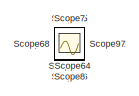
[diagram: root canvas - part 1/3, top left region]
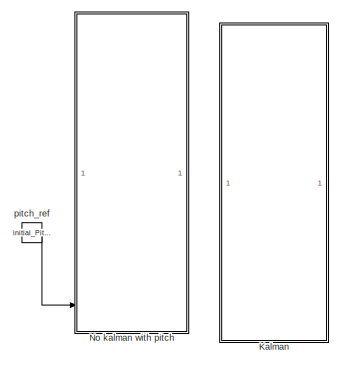
[diagram: root canvas - part 2/3, middle left region]
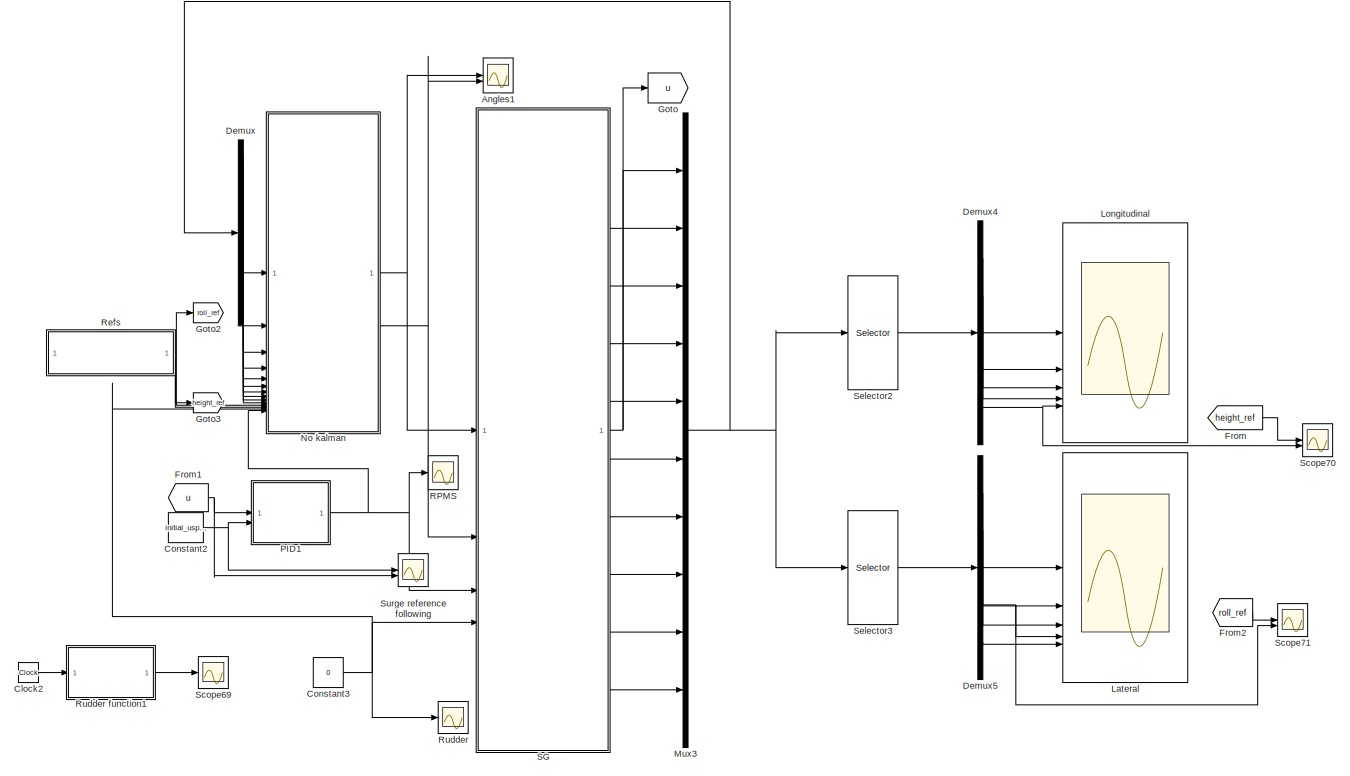
[diagram: root canvas - part 3/3, full width, bottom band]
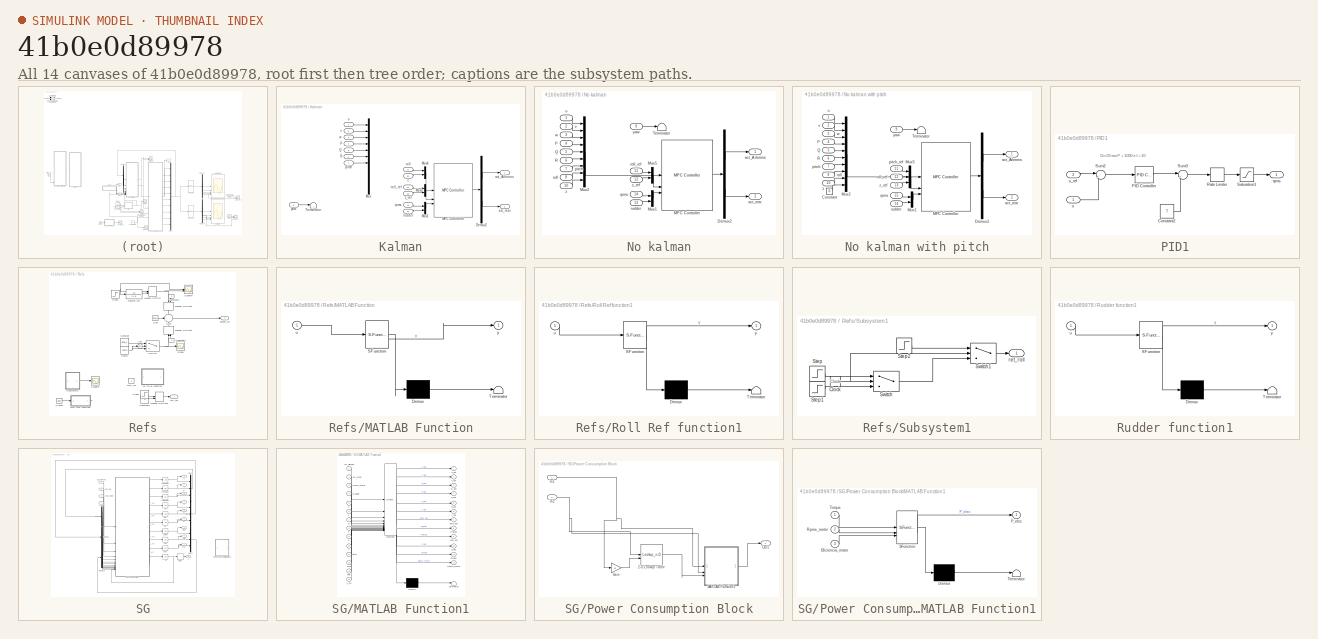
[diagram: thumbnail index - all 14 canvases of the model, root first then tree order]
MODEL slx_41b0e0d89978
KIND model
CONFIG AbsTol = auto
CONFIG EnableMultiTasking = off
CONFIG FixedStep = auto
CONFIG MaxStep = auto
CONFIG MinStep = auto
CONFIG RelTol = 1e-3
CONFIG SampleTimeConstraint = Unconstrained
CONFIG SolverName = VariableStepAuto
CONFIG StartTime = 0.0
CONFIG StopTime = 20
BLOCK [Scope] Angles1
  Floating = off
  NumInputPorts = 2
  ScopeSpecificationString = Simulink.scopes.TimeScopeBlockCfg('CurrentConfiguration', extmgr.ConfigurationSet(extmgr.Configuration('Core','General UI',true),extmgr.Configuration('Core','Source UI',true),extmgr.Configuration('Sources','WiredSimulink',true,'DataLoggingVariableName','ScopeData1'),extmgr.Configuration('Visuals','Time Domain',true,'SerializedDisplays',{struct('MinYLimReal','-1.89105','MaxYLimReal','16.87678','YLa...<+2280ch>
BLOCK [Clock] Clock2
  Commented = on
BLOCK [Constant] Constant2
  Value = initial_uspeed
BLOCK [Constant] Constant3
  Value = 0
BLOCK [Demux] Demux
  Outputs = 10
BLOCK [Demux] Demux4
  Outputs = 5
BLOCK [Demux] Demux5
  Outputs = 5
BLOCK [From] From
  GotoTag = height_ref
BLOCK [From] From1
  GotoTag = u
BLOCK [From] From2
  GotoTag = roll_ref
BLOCK [Goto] Goto
  GotoTag = u
BLOCK [Goto] Goto2
  GotoTag = roll_ref
BLOCK [Goto] Goto3
  GotoTag = height_ref
BLOCK [SubSystem] Kalman
  Commented = on
BLOCK [Demux] Kalman/Demux2
  Outputs = 2
BLOCK [Reference] Kalman/MPC Controller  REF=mpclib/MPC Controller  (lib defined in mdl_ae329e0e0455)
  SCDEnableBlockLinearizationSpecification = on
  SourceBlock = mpclib/MPC Controller
  SourceType = MPC
BLOCK [Mux] Kalman/Mux
  DisplayOption = bar
  Inputs = 11
BLOCK [Mux] Kalman/Mux1
  DisplayOption = bar
  Inputs = 2
BLOCK [Mux] Kalman/Mux3
  DisplayOption = bar
  Inputs = 2
BLOCK [Mux] Kalman/Mux4
  DisplayOption = bar
  Inputs = 2
BLOCK [Inport] Kalman/P
  NameLocation = left
  Port = 4
BLOCK [Inport] Kalman/Q
  NameLocation = left
  Port = 5
BLOCK [Inport] Kalman/R
  NameLocation = left
  Port = 6
BLOCK [Terminator] Kalman/Terminator
BLOCK [Outport] Kalman/act_Ailerons
BLOCK [Outport] Kalman/act_rear
  Port = 2
BLOCK [Inport] Kalman/pitch
  NameLocation = left
  Port = 7
BLOCK [Inport] Kalman/roll
  NameLocation = left
  Port = 8
BLOCK [Inport] Kalman/roll_ref
  NameLocation = left
  Port = 11
BLOCK [Inport] Kalman/rpms
  NameLocation = left
  Port = 13
BLOCK [Inport] Kalman/rudder
  NameLocation = left
  Port = 14
BLOCK [Inport] Kalman/u
  NameLocation = left
BLOCK [Inport] Kalman/v
  NameLocation = left
  Port = 2
BLOCK [Inport] Kalman/w
  NameLocation = left
  Port = 3
BLOCK [Inport] Kalman/yaw
  NameLocation = left
  Port = 9
BLOCK [Inport] Kalman/z
  NameLocation = left
  Port = 10
BLOCK [Inport] Kalman/z_ref
  NameLocation = left
  Port = 12
BLOCK [Scope] Lateral
  Floating = off
  NumInputPorts = 5
  ScopeSpecificationString = Simulink.scopes.TimeScopeBlockCfg('CurrentConfiguration', extmgr.ConfigurationSet(extmgr.Configuration('Core','General UI',true),extmgr.Configuration('Core','Source UI',true),extmgr.Configuration('Sources','WiredSimulink',true,'DataLoggingVariableName','ScopeData2'),extmgr.Configuration('Visuals','Time Domain',true,'SerializedDisplays',{struct('MinYLimReal','-1.01808','MaxYLimReal','9.1627','YLabe...<+4793ch>
BLOCK [Scope] Longitudinal
  Floating = off
  NameLocation = top
  NumInputPorts = 5
  ScopeSpecificationString = Simulink.scopes.TimeScopeBlockCfg('CurrentConfiguration', extmgr.ConfigurationSet(extmgr.Configuration('Core','General UI',true),extmgr.Configuration('Core','Source UI',true),extmgr.Configuration('Sources','WiredSimulink',true,'DataLoggingVariableName','ScopeData3'),extmgr.Configuration('Visuals','Time Domain',true,'SerializedDisplays',{struct('MinYLimReal','10.24852','MaxYLimReal','10.25595','YLa...<+4771ch>
BLOCK [Mux] Mux3
  DisplayOption = bar
  Inputs = 10
BLOCK [SubSystem] No kalman
BLOCK [SubSystem] No kalman with pitch
  Commented = on
BLOCK [Constant] No kalman with pitch/Constant
  Value = 0
BLOCK [Demux] No kalman with pitch/Demux2
  Outputs = 2
BLOCK [Reference] No kalman with pitch/MPC Controller  REF=mpclib/MPC Controller  (lib defined in mdl_ae329e0e0455)
  SCDEnableBlockLinearizationSpecification = on
  SourceBlock = mpclib/MPC Controller
  SourceType = MPC
BLOCK [Mux] No kalman with pitch/Mux1
  DisplayOption = bar
  Inputs = 2
BLOCK [Mux] No kalman with pitch/Mux2
  DisplayOption = bar
  Inputs = 10
BLOCK [Mux] No kalman with pitch/Mux5
  DisplayOption = bar
  Inputs = 3
BLOCK [Inport] No kalman with pitch/P
  NameLocation = left
  Port = 4
BLOCK [Inport] No kalman with pitch/Q
  NameLocation = left
  Port = 5
BLOCK [Inport] No kalman with pitch/R
  NameLocation = left
  Port = 6
BLOCK [Terminator] No kalman with pitch/Terminator
BLOCK [Outport] No kalman with pitch/act_Ailerons
BLOCK [Outport] No kalman with pitch/act_rear
  Port = 2
BLOCK [Inport] No kalman with pitch/pitch
  NameLocation = left
  Port = 7
BLOCK [Inport] No kalman with pitch/pitch_ref
  NameLocation = left
  Port = 11
BLOCK [Inport] No kalman with pitch/roll
  NameLocation = left
  Port = 8
BLOCK [Inport] No kalman with pitch/roll_ref
  NameLocation = left
  Port = 12
BLOCK [Inport] No kalman with pitch/rpms
  NameLocation = left
  Port = 15
BLOCK [Inport] No kalman with pitch/rudder
  NameLocation = left
  Port = 14
BLOCK [Inport] No kalman with pitch/u
  NameLocation = left
BLOCK [Inport] No kalman with pitch/v
  NameLocation = left
  Port = 2
BLOCK [Inport] No kalman with pitch/w
  NameLocation = left
  Port = 3
BLOCK [Inport] No kalman with pitch/yaw
  NameLocation = left
  Port = 9
BLOCK [Inport] No kalman with pitch/z
  NameLocation = left
  Port = 10
BLOCK [Inport] No kalman with pitch/z_ref
  NameLocation = left
  Port = 13
BLOCK [Demux] No kalman/Demux2
  Outputs = 2
BLOCK [Reference] No kalman/MPC Controller  REF=mpclib/MPC Controller  (lib defined in mdl_ae329e0e0455)
  SCDEnableBlockLinearizationSpecification = on
  SourceBlock = mpclib/MPC Controller
  SourceType = MPC
BLOCK [Mux] No kalman/Mux1
  DisplayOption = bar
  Inputs = 2
BLOCK [Mux] No kalman/Mux2
  DisplayOption = bar
  Inputs = 9
BLOCK [Mux] No kalman/Mux5
  DisplayOption = bar
  Inputs = 2
BLOCK [Inport] No kalman/P
  NameLocation = left
  Port = 4
BLOCK [Inport] No kalman/Q
  NameLocation = left
  Port = 5
BLOCK [Inport] No kalman/R
  NameLocation = left
  Port = 6
BLOCK [Terminator] No kalman/Terminator
BLOCK [Outport] No kalman/act_Ailerons
BLOCK [Outport] No kalman/act_rear
  Port = 2
BLOCK [Inport] No kalman/pitch
  NameLocation = left
  Port = 7
BLOCK [Inport] No kalman/roll
  NameLocation = left
  Port = 8
BLOCK [Inport] No kalman/roll_ref
  NameLocation = left
  Port = 11
BLOCK [Inport] No kalman/rpms
  NameLocation = left
  Port = 14
BLOCK [Inport] No kalman/rudder
  NameLocation = left
  Port = 13
BLOCK [Inport] No kalman/u
  NameLocation = left
BLOCK [Inport] No kalman/v
  NameLocation = left
  Port = 2
BLOCK [Inport] No kalman/w
  NameLocation = left
  Port = 3
BLOCK [Inport] No kalman/yaw
  NameLocation = left
  Port = 9
BLOCK [Inport] No kalman/z
  NameLocation = left
  Port = 10
BLOCK [Inport] No kalman/z_ref
  NameLocation = left
  Port = 12
BLOCK [SubSystem] PID1
BLOCK [Constant] PID1/Constant2
  Value = T
BLOCK [Reference] PID1/PID Controller  REF=slpidlib/PID Controller
  SourceBlock = slpidlib/PID Controller
  SourceType = PID 1dof
BLOCK [RateLimiter] PID1/Rate Limiter
  FallingSlewLimit = -1000
  InitialCondition = T
  RisingSlewLimit = 1000
  SampleTimeMode = inherited
BLOCK [Saturate] PID1/Saturation1
  UpperLimit = 10000
BLOCK [Sum] PID1/Sum2
  Inputs = |+-
BLOCK [Sum] PID1/Sum3
  Inputs = |++
BLOCK [Outport] PID1/rpms
BLOCK [Inport] PID1/u
  NameLocation = top
BLOCK [Inport] PID1/u_ref
  Port = 2
BLOCK [Scope] RPMS
  Floating = off
  NumInputPorts = 1
  ScopeSpecificationString = Simulink.scopes.TimeScopeBlockCfg('CurrentConfiguration', extmgr.ConfigurationSet(extmgr.Configuration('Core','General UI',true),extmgr.Configuration('Core','Source UI',true),extmgr.Configuration('Sources','WiredSimulink',true,'DataLoggingVariableName','ScopeData1'),extmgr.Configuration('Visuals','Time Domain',true,'SerializedDisplays',{struct('MinYLimReal','4636.22712','MaxYLimReal','4788.20962',...<+1526ch>
BLOCK [SubSystem] Refs
  NameLocation = top
BLOCK [Abs] Refs/Abs
  SaturateOnIntegerOverflow = off
BLOCK [Clock] Refs/Clock3
  Commented = on
BLOCK [Constant] Refs/Constant
  NameLocation = right
  Value = initial_Z
BLOCK [Constant] Refs/Constant1
  NameLocation = right
  Value = 0
BLOCK [Constant] Refs/Constant2
  NameLocation = left
  Value = 0
BLOCK [Constant] Refs/Constant3
  NameLocation = right
  Value = 0
BLOCK [SubSystem] Refs/MATLAB Function
  ErrorFcn = Stateflow.Translate.translate
  PermitHierarchicalResolution = ExplicitOnly
  SFBlockType = MATLAB Function
  TreatAsAtomicUnit = on
BLOCK [Demux] Refs/MATLAB Function/ Demux 
  Outputs = 1
BLOCK [S-Function] Refs/MATLAB Function/ SFunction 
  EnableBusSupport = on
  FunctionName = sf_sfun
  PortCounts = [1 2]
  SFcnIsStateOwnerBlock = off
  SFunctionDeploymentMode = off
  Tag = Stateflow S-Function 2
BLOCK [Terminator] Refs/MATLAB Function/ Terminator 
BLOCK [Inport] Refs/MATLAB Function/u
BLOCK [Outport] Refs/MATLAB Function/y
BLOCK [ManualSwitch] Refs/Manual Switch
  CurrentSetting = 0
BLOCK [ManualSwitch] Refs/Manual Switch1
  CurrentSetting = 0
  NameLocation = right
BLOCK [ManualSwitch] Refs/Manual Switch2
  NameLocation = left
BLOCK [ManualSwitch] Refs/Manual Switch3
  CurrentSetting = 0
BLOCK [Reference] Refs/Ramp  REF=simulink/Sources/Ramp
  SourceBlock = simulink/Sources/Ramp
  SourceType = Ramp
BLOCK [SubSystem] Refs/Roll Ref function1
  Commented = on
  ErrorFcn = Stateflow.Translate.translate
  PermitHierarchicalResolution = ExplicitOnly
  SFBlockType = MATLAB Function
  TreatAsAtomicUnit = on
BLOCK [Demux] Refs/Roll Ref function1/ Demux 
  Outputs = 1
BLOCK [S-Function] Refs/Roll Ref function1/ SFunction 
  EnableBusSupport = off
  FunctionName = sf_sfun
  PortCounts = [1 2]
  SFcnIsStateOwnerBlock = off
  SFunctionDeploymentMode = off
  Tag = Stateflow S-Function 6
BLOCK [Terminator] Refs/Roll Ref function1/ Terminator 
BLOCK [Inport] Refs/Roll Ref function1/u
BLOCK [Outport] Refs/Roll Ref function1/y
BLOCK [Constant] Refs/Roll_ref
  NameLocation = left
  Value = 2
BLOCK [Scope] Refs/Scope
  Floating = off
  NumInputPorts = 1
  ScopeSpecificationString = Simulink.scopes.TimeScopeBlockCfg('CurrentConfiguration', extmgr.ConfigurationSet(extmgr.Configuration('Core','General UI',true),extmgr.Configuration('Core','Source UI',true),extmgr.Configuration('Sources','WiredSimulink',true,'DataLoggingVariableName','ScopeData5'),extmgr.Configuration('Visuals','Time Domain',true,'SerializedDisplays',{struct('MinYLimReal','-56.25','MaxYLimReal','6.25','YLabelRea...<+1440ch>
BLOCK [Scope] Refs/Scope70
  Floating = off
  NumInputPorts = 2
  ScopeSpecificationString = Simulink.scopes.TimeScopeBlockCfg('CurrentConfiguration', extmgr.ConfigurationSet(extmgr.Configuration('Core','General UI',true),extmgr.Configuration('Core','Source UI',true),extmgr.Configuration('Sources','WiredSimulink',true,'DataLoggingVariableName','ScopeData1'),extmgr.Configuration('Visuals','Time Domain',true,'SerializedDisplays',{struct('MinYLimReal','-1.875','MaxYLimReal','16.875','YLabelR...<+1461ch>
BLOCK [Scope] Refs/Scope72
  Commented = on
  Floating = off
  NumInputPorts = 1
  ScopeSpecificationString = Simulink.scopes.TimeScopeBlockCfg('CurrentConfiguration', extmgr.ConfigurationSet(extmgr.Configuration('Core','General UI',true),extmgr.Configuration('Core','Source UI',true),extmgr.Configuration('Sources','WiredSimulink',true,'DataLoggingVariableName','ScopeData2'),extmgr.Configuration('Visuals','Time Domain',true,'SerializedDisplays',{struct('MinYLimReal','-13.75','MaxYLimReal','13.75','YLabelRe...<+1520ch>
BLOCK [Step] Refs/Step1
  After = 15
  SampleTime = 0
  Time = 5
BLOCK [Step] Refs/Step2
  After = 2
  SampleTime = 0
  Time = 5
BLOCK [SubSystem] Refs/Subsystem1
  Commented = on
BLOCK [Clock] Refs/Subsystem1/Clock
BLOCK [Step] Refs/Subsystem1/Step
  After = -11
  Before = 11
  SampleTime = 0
  Time = 4
BLOCK [Step] Refs/Subsystem1/Step1
  After = 11
  SampleTime = 0
BLOCK [Step] Refs/Subsystem1/Step2
  After = 0
  Before = -11
  SampleTime = 0
  Time = 7
BLOCK [Switch] Refs/Subsystem1/Switch
  Criteria = u2 > Threshold
  InputSameDT = off
  SaturateOnIntegerOverflow = off
  Threshold = 3
BLOCK [Switch] Refs/Subsystem1/Switch1
  Criteria = u2 > Threshold
  InputSameDT = off
  SaturateOnIntegerOverflow = off
  Threshold = 7
BLOCK [Outport] Refs/Subsystem1/ref_roll
BLOCK [Sum] Refs/Sum
  Inputs = +|+|+
BLOCK [Switch] Refs/Switch
  Criteria = u2 > Threshold
  InputSameDT = off
  SaturateOnIntegerOverflow = off
  Threshold = 50
BLOCK [TransferFcn] Refs/Transfer Fcn
  Denominator = [1 1]
BLOCK [Outport] Refs/height_ref
  Port = 2
BLOCK [Outport] Refs/roll_ref
  NameLocation = top
BLOCK [Constant] Refs/z_ref
  NameLocation = left
  Value = initial_Z
BLOCK [Scope] Rudder
  Floating = off
  NumInputPorts = 1
  ScopeSpecificationString = Simulink.scopes.TimeScopeBlockCfg('CurrentConfiguration', extmgr.ConfigurationSet(extmgr.Configuration('Core','General UI',true),extmgr.Configuration('Core','Source UI',true),extmgr.Configuration('Sources','WiredSimulink',true,'DataLoggingVariableName','ScopeData6'),extmgr.Configuration('Visuals','Time Domain',true,'SerializedDisplays',{struct('MinYLimReal','-1.00000','MaxYLimReal','1.00000','YLab...<+1588ch>
BLOCK [SubSystem] Rudder function1
  Commented = on
  ErrorFcn = Stateflow.Translate.translate
  PermitHierarchicalResolution = ExplicitOnly
  SFBlockType = MATLAB Function
  TreatAsAtomicUnit = on
BLOCK [Demux] Rudder function1/ Demux 
  Outputs = 1
BLOCK [S-Function] Rudder function1/ SFunction 
  EnableBusSupport = off
  FunctionName = sf_sfun
  PortCounts = [1 2]
  SFcnIsStateOwnerBlock = off
  SFunctionDeploymentMode = off
  Tag = Stateflow S-Function 7
BLOCK [Terminator] Rudder function1/ Terminator 
BLOCK [Inport] Rudder function1/u
BLOCK [Outport] Rudder function1/y
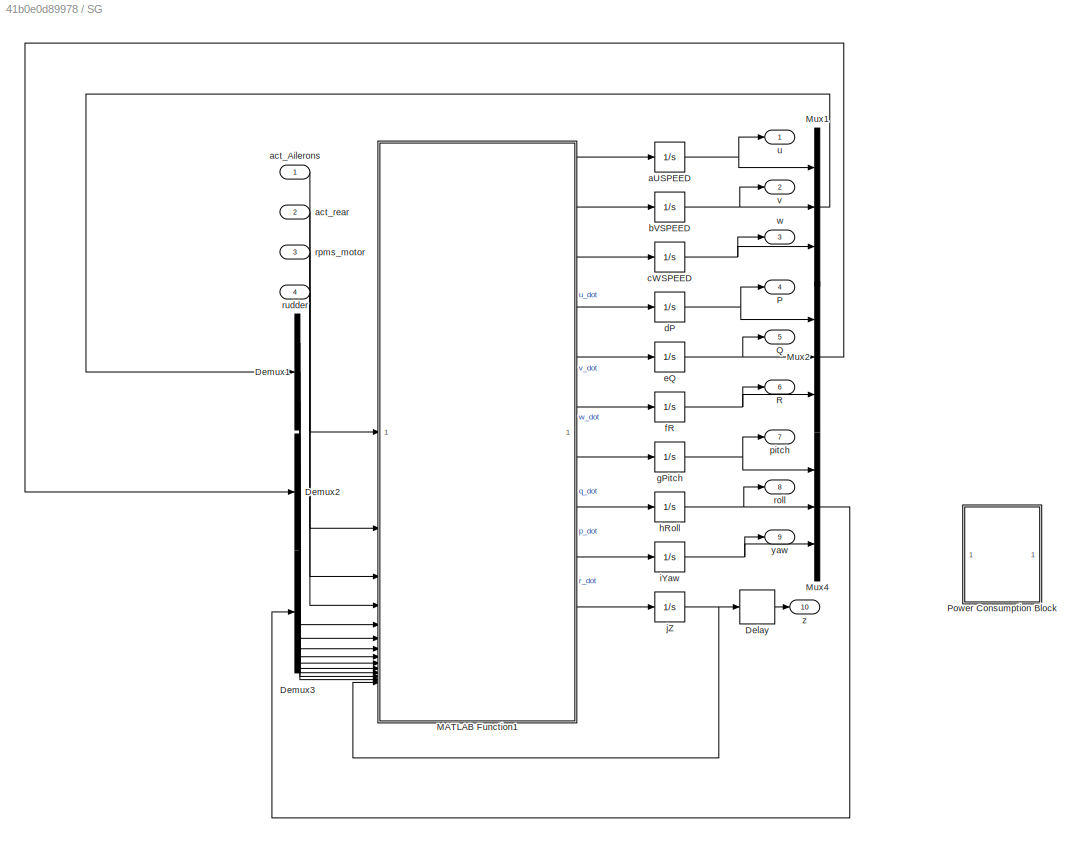
BLOCK [SubSystem] SG
BLOCK [Delay] SG/Delay
  DelayLength = n
  InitialCondition = initial_Z
  InputPortMap = u0
  SampleTime = ts
BLOCK [Demux] SG/Demux1
  Outputs = 3
BLOCK [Demux] SG/Demux2
  Outputs = 3
BLOCK [Demux] SG/Demux3
  Outputs = 3
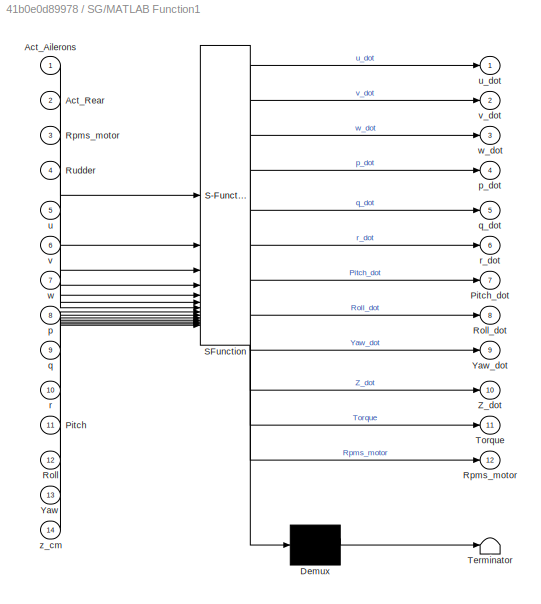
BLOCK [SubSystem] SG/MATLAB Function1
  ErrorFcn = Stateflow.Translate.translate
  PermitHierarchicalResolution = ExplicitOnly
  SFBlockType = MATLAB Function
  TreatAsAtomicUnit = on
BLOCK [Demux] SG/MATLAB Function1/ Demux 
  Outputs = 1
BLOCK [S-Function] SG/MATLAB Function1/ SFunction 
  EnableBusSupport = on
  FunctionName = sf_sfun
  PortCounts = [14 13]
  SFcnIsStateOwnerBlock = off
  SFunctionDeploymentMode = off
  Tag = Stateflow S-Function 1
BLOCK [Terminator] SG/MATLAB Function1/ Terminator 
BLOCK [Inport] SG/MATLAB Function1/Act_Ailerons
BLOCK [Inport] SG/MATLAB Function1/Act_Rear
  Port = 2
BLOCK [Inport] SG/MATLAB Function1/Pitch
  Port = 11
BLOCK [Outport] SG/MATLAB Function1/Pitch_dot
  Port = 7
BLOCK [Inport] SG/MATLAB Function1/Roll
  Port = 12
BLOCK [Outport] SG/MATLAB Function1/Roll_dot
  Port = 8
BLOCK [Outport] SG/MATLAB Function1/Rpms_motor
  Port = 12
BLOCK [Inport] SG/MATLAB Function1/Rpms_motor 
  Port = 3
BLOCK [Inport] SG/MATLAB Function1/Rudder
  Port = 4
BLOCK [Outport] SG/MATLAB Function1/Torque
  Port = 11
BLOCK [Inport] SG/MATLAB Function1/Yaw
  Port = 13
BLOCK [Outport] SG/MATLAB Function1/Yaw_dot
  Port = 9
BLOCK [Outport] SG/MATLAB Function1/Z_dot
  Port = 10
BLOCK [Inport] SG/MATLAB Function1/p
  Port = 8
BLOCK [Outport] SG/MATLAB Function1/p_dot
  Port = 4
BLOCK [Inport] SG/MATLAB Function1/q
  Port = 9
BLOCK [Outport] SG/MATLAB Function1/q_dot
  Port = 5
BLOCK [Inport] SG/MATLAB Function1/r
  Port = 10
BLOCK [Outport] SG/MATLAB Function1/r_dot
  Port = 6
BLOCK [Inport] SG/MATLAB Function1/u
  Port = 5
BLOCK [Outport] SG/MATLAB Function1/u_dot
BLOCK [Inport] SG/MATLAB Function1/v
  Port = 6
BLOCK [Outport] SG/MATLAB Function1/v_dot
  Port = 2
BLOCK [Inport] SG/MATLAB Function1/w
  Port = 7
BLOCK [Outport] SG/MATLAB Function1/w_dot
  Port = 3
BLOCK [Inport] SG/MATLAB Function1/z_cm
  Port = 14
BLOCK [Mux] SG/Mux1
  DisplayOption = bar
  Inputs = 3
BLOCK [Mux] SG/Mux2
  DisplayOption = bar
  Inputs = 3
BLOCK [Mux] SG/Mux4
  DisplayOption = bar
  Inputs = 3
BLOCK [Outport] SG/P
  NameLocation = top
  Port = 4
BLOCK [SubSystem] SG/Power Consumption Block
  Commented = on
BLOCK [Lookup_n-D] SG/Power Consumption Block/2-D Lookup Table
  BreakpointsForDimension1 = [1:6000]
  BreakpointsForDimension2 = [1:140]
  InputPortMap = u0,u1
  InternalRulePriority = Speed
  RndMeth = Simplest
  Table = Eff
BLOCK [Gain] SG/Power Consumption Block/Gain
  Gain = 10
BLOCK [Inport] SG/Power Consumption Block/In1
BLOCK [Inport] SG/Power Consumption Block/In2
  Port = 2
BLOCK [SubSystem] SG/Power Consumption Block/MATLAB Function1
  ErrorFcn = Stateflow.Translate.translate
  PermitHierarchicalResolution = ExplicitOnly
  SFBlockType = MATLAB Function
  TreatAsAtomicUnit = on
BLOCK [Demux] SG/Power Consumption Block/MATLAB Function1/ Demux 
  Outputs = 1
BLOCK [S-Function] SG/Power Consumption Block/MATLAB Function1/ SFunction 
  EnableBusSupport = off
  FunctionName = sf_sfun
  PortCounts = [3 2]
  SFcnIsStateOwnerBlock = off
  SFunctionDeploymentMode = off
  Tag = Stateflow S-Function 8
BLOCK [Terminator] SG/Power Consumption Block/MATLAB Function1/ Terminator 
BLOCK [Inport] SG/Power Consumption Block/MATLAB Function1/Eficiencia_motor
  Port = 3
BLOCK [Outport] SG/Power Consumption Block/MATLAB Function1/P_elec
BLOCK [Inport] SG/Power Consumption Block/MATLAB Function1/Rpms_motor
  Port = 2
BLOCK [Inport] SG/Power Consumption Block/MATLAB Function1/Torque
BLOCK [Outport] SG/Power Consumption Block/Out1
BLOCK [Outport] SG/Q
  NameLocation = top
  Port = 5
BLOCK [Outport] SG/R
  NameLocation = top
  Port = 6
BLOCK [Integrator] SG/aUSPEED
  InitialCondition = initial_uspeed
BLOCK [Inport] SG/act_Ailerons
BLOCK [Inport] SG/act_rear
  Port = 2
BLOCK [Integrator] SG/bVSPEED
  InitialCondition = initial_vspeed
BLOCK [Integrator] SG/cWSPEED
  InitialCondition = initial_wspeed
BLOCK [Integrator] SG/dP
  InitialCondition = initial_P
BLOCK [Integrator] SG/eQ
  InitialCondition = initial_Q
BLOCK [Integrator] SG/fR
  InitialCondition = initial_R
BLOCK [Integrator] SG/gPitch
  InitialCondition = initial_Pitch
BLOCK [Integrator] SG/hRoll
  InitialCondition = initial_ROLL
BLOCK [Integrator] SG/iYaw
  InitialCondition = initial_YAW
BLOCK [Integrator] SG/jZ
  InitialCondition = initial_Z
BLOCK [Outport] SG/pitch
  NameLocation = top
  Port = 7
BLOCK [Outport] SG/roll
  NameLocation = top
  Port = 8
BLOCK [Inport] SG/rpms_motor
  Port = 3
BLOCK [Inport] SG/rudder
  Port = 4
BLOCK [Outport] SG/u
  NameLocation = top
BLOCK [Outport] SG/v
  NameLocation = top
  Port = 2
BLOCK [Outport] SG/w
  NameLocation = top
  Port = 3
BLOCK [Outport] SG/yaw
  NameLocation = top
  Port = 9
BLOCK [Outport] SG/z
  NameLocation = top
  Port = 10
BLOCK [Scope] Scope
  Floating = off
  IOType = viewer
  NumInputPorts = 1
  ScopeSpecificationString = Simulink.scopes.TimeScopeBlockCfg('CurrentConfiguration', extmgr.ConfigurationSet(extmgr.Configuration('Core','General UI',true),extmgr.Configuration('Core','Source UI',true),extmgr.Configuration('Sources','WiredSimulink',true,'DataLoggingVariableName','ScopeData1'),extmgr.Configuration('Visuals','Time Domain',true,'SerializedDisplays',{struct('MinYLimReal','4.06844','MaxYLimReal','5.18693','YLabe...<+1500ch>
BLOCK [Scope] Scope1
  Floating = off
  IOType = viewer
  NumInputPorts = 1
  ScopeSpecificationString = Simulink.scopes.TimeScopeBlockCfg('CurrentConfiguration', extmgr.ConfigurationSet(extmgr.Configuration('Core','General UI',true),extmgr.Configuration('Core','Source UI',true),extmgr.Configuration('Sources','WiredSimulink',true,'DataLoggingVariableName','ScopeData1'),extmgr.Configuration('Visuals','Time Domain',true,'SerializedDisplays',{struct('MinYLimReal','-0.69407','MaxYLimReal','1.09135','YLab...<+1477ch>
BLOCK [Scope] Scope10
  Floating = off
  IOType = viewer
  NumInputPorts = 1
  ScopeSpecificationString = Simulink.scopes.TimeScopeBlockCfg('CurrentConfiguration', extmgr.ConfigurationSet(extmgr.Configuration('Core','General UI',true),extmgr.Configuration('Core','Source UI',true),extmgr.Configuration('Sources','WiredSimulink',true,'DataLoggingVariableName','ScopeData1'),extmgr.Configuration('Visuals','Time Domain',true,'SerializedDisplays',{struct('MinYLimReal','-1.00000','MaxYLimReal','1.00000','YLab...<+1448ch>
BLOCK [Scope] Scope11
  Floating = off
  IOType = viewer
  NumInputPorts = 1
  ScopeSpecificationString = Simulink.scopes.TimeScopeBlockCfg('CurrentConfiguration', extmgr.ConfigurationSet(extmgr.Configuration('Core','General UI',true),extmgr.Configuration('Core','Source UI',true),extmgr.Configuration('Sources','WiredSimulink',true,'DataLoggingVariableName','ScopeData1'),extmgr.Configuration('Visuals','Time Domain',true,'SerializedDisplays',{struct('MinYLimReal','-2.99323','MaxYLimReal','6.45603','YLab...<+1448ch>
BLOCK [Scope] Scope12
  Floating = off
  IOType = viewer
  NumInputPorts = 1
  ScopeSpecificationString = Simulink.scopes.TimeScopeBlockCfg('CurrentConfiguration', extmgr.ConfigurationSet(extmgr.Configuration('Core','General UI',true),extmgr.Configuration('Core','Source UI',true),extmgr.Configuration('Sources','WiredSimulink',true,'DataLoggingVariableName','ScopeData1'),extmgr.Configuration('Visuals','Time Domain',true,'SerializedDisplays',{struct('MinYLimReal','-0.5','MaxYLimReal','-0.3','YLabelReal'...<+1426ch>
BLOCK [Scope] Scope13
  Floating = off
  IOType = viewer
  NumInputPorts = 1
  ScopeSpecificationString = Simulink.scopes.TimeScopeBlockCfg('CurrentConfiguration', extmgr.ConfigurationSet(extmgr.Configuration('Core','General UI',true),extmgr.Configuration('Core','Source UI',true),extmgr.Configuration('Sources','WiredSimulink',true,'DataLoggingVariableName','ScopeData1'),extmgr.Configuration('Visuals','Time Domain',true,'SerializedDisplays',{struct('MinYLimReal','-1068104.69611','MaxYLimReal','9611384....<+1523ch>
BLOCK [Scope] Scope14
  Floating = off
  IOType = viewer
  NumInputPorts = 1
  ScopeSpecificationString = Simulink.scopes.TimeScopeBlockCfg('CurrentConfiguration', extmgr.ConfigurationSet(extmgr.Configuration('Core','General UI',true),extmgr.Configuration('Core','Source UI',true),extmgr.Configuration('Sources','WiredSimulink',true,'DataLoggingVariableName','ScopeData1'),extmgr.Configuration('Visuals','Time Domain',true,'SerializedDisplays',{struct('MinYLimReal','-10.00000','MaxYLimReal','10.00000','YL...<+1483ch>
BLOCK [Scope] Scope15
  Floating = off
  IOType = viewer
  NumInputPorts = 1
  ScopeSpecificationString = Simulink.scopes.TimeScopeBlockCfg('CurrentConfiguration', extmgr.ConfigurationSet(extmgr.Configuration('Core','General UI',true),extmgr.Configuration('Core','Source UI',true),extmgr.Configuration('Sources','WiredSimulink',true,'DataLoggingVariableName','ScopeData2'),extmgr.Configuration('Visuals','Time Domain',true,'SerializedDisplays',{struct('MinYLimReal','0.42395','MaxYLimReal','1.1452','YLabel...<+1442ch>
BLOCK [Scope] Scope16
  Floating = off
  IOType = viewer
  NumInputPorts = 1
  ScopeSpecificationString = Simulink.scopes.TimeScopeBlockCfg('CurrentConfiguration', extmgr.ConfigurationSet(extmgr.Configuration('Core','General UI',true),extmgr.Configuration('Core','Source UI',true),extmgr.Configuration('Sources','WiredSimulink',true,'DataLoggingVariableName','ScopeData1'),extmgr.Configuration('Visuals','Time Domain',true,'SerializedDisplays',{struct('MinYLimReal','1787.16851','MaxYLimReal','6468.09239',...<+1470ch>
BLOCK [Scope] Scope17
  Floating = off
  IOType = viewer
  NumInputPorts = 1
  ScopeSpecificationString = Simulink.scopes.TimeScopeBlockCfg('CurrentConfiguration', extmgr.ConfigurationSet(extmgr.Configuration('Core','General UI',true),extmgr.Configuration('Core','Source UI',true),extmgr.Configuration('Sources','WiredSimulink',true,'DataLoggingVariableName','ScopeData2'),extmgr.Configuration('Visuals','Time Domain',true,'SerializedDisplays',{struct('MinYLimReal','-3.58864','MaxYLimReal','2.29775','YLab...<+1491ch>
BLOCK [Scope] Scope18
  Floating = off
  IOType = viewer
  NumInputPorts = 1
  ScopeSpecificationString = Simulink.scopes.TimeScopeBlockCfg('CurrentConfiguration', extmgr.ConfigurationSet(extmgr.Configuration('Core','General UI',true),extmgr.Configuration('Core','Source UI',true),extmgr.Configuration('Sources','WiredSimulink',true,'DataLoggingVariableName','ScopeData3'),extmgr.Configuration('Visuals','Time Domain',true,'SerializedDisplays',{struct('MinYLimReal','1.68278','MaxYLimReal','4.37574','YLabe...<+1446ch>
BLOCK [Scope] Scope19
  Floating = off
  IOType = viewer
  NumInputPorts = 1
  ScopeSpecificationString = Simulink.scopes.TimeScopeBlockCfg('CurrentConfiguration', extmgr.ConfigurationSet(extmgr.Configuration('Core','General UI',true),extmgr.Configuration('Core','Source UI',true),extmgr.Configuration('Sources','WiredSimulink',true,'DataLoggingVariableName','ScopeData1'),extmgr.Configuration('Visuals','Time Domain',true,'SerializedDisplays',{struct('MinYLimReal','-22.41764','MaxYLimReal','23.2781','YLa...<+1485ch>
BLOCK [Scope] Scope2
  Floating = off
  IOType = viewer
  NumInputPorts = 1
  ScopeSpecificationString = Simulink.scopes.TimeScopeBlockCfg('CurrentConfiguration', extmgr.ConfigurationSet(extmgr.Configuration('Core','General UI',true),extmgr.Configuration('Core','Source UI',true),extmgr.Configuration('Sources','WiredSimulink',true,'DataLoggingVariableName','ScopeData1'),extmgr.Configuration('Visuals','Time Domain',true,'SerializedDisplays',{struct('MinYLimReal','-0.5195','MaxYLimReal','-0.33996','YLab...<+1446ch>
BLOCK [Scope] Scope20
  Floating = off
  IOType = viewer
  NumInputPorts = 1
  ScopeSpecificationString = Simulink.scopes.TimeScopeBlockCfg('CurrentConfiguration', extmgr.ConfigurationSet(extmgr.Configuration('Core','General UI',true),extmgr.Configuration('Core','Source UI',true),extmgr.Configuration('Sources','WiredSimulink',true,'DataLoggingVariableName','ScopeData8'),extmgr.Configuration('Visuals','Time Domain',true,'SerializedDisplays',{struct('MinYLimReal','-2.49229','MaxYLimReal','15.10017','YLa...<+1487ch>
BLOCK [Scope] Scope21
  Floating = off
  IOType = viewer
  NumInputPorts = 1
  ScopeSpecificationString = Simulink.scopes.TimeScopeBlockCfg('CurrentConfiguration', extmgr.ConfigurationSet(extmgr.Configuration('Core','General UI',true),extmgr.Configuration('Core','Source UI',true),extmgr.Configuration('Sources','WiredSimulink',true,'DataLoggingVariableName','ScopeData3'),extmgr.Configuration('Visuals','Time Domain',true,'SerializedDisplays',{struct('MinYLimReal','-18648991873633264003448832.00000','Max...<+1650ch>
BLOCK [Scope] Scope22
  Floating = off
  IOType = viewer
  NumInputPorts = 1
  ScopeSpecificationString = Simulink.scopes.TimeScopeBlockCfg('CurrentConfiguration', extmgr.ConfigurationSet(extmgr.Configuration('Core','General UI',true),extmgr.Configuration('Core','Source UI',true),extmgr.Configuration('Sources','WiredSimulink',true,'DataLoggingVariableName','ScopeData4'),extmgr.Configuration('Visuals','Time Domain',true,'SerializedDisplays',{struct('MinYLimReal','65.875','MaxYLimReal','77.125','YLabelR...<+1473ch>
BLOCK [Scope] Scope23
  Floating = off
  IOType = viewer
  NumInputPorts = 1
  ScopeSpecificationString = Simulink.scopes.TimeScopeBlockCfg('CurrentConfiguration', extmgr.ConfigurationSet(extmgr.Configuration('Core','General UI',true),extmgr.Configuration('Core','Source UI',true),extmgr.Configuration('Sources','WiredSimulink',true,'DataLoggingVariableName','ScopeData5'),extmgr.Configuration('Visuals','Time Domain',true,'SerializedDisplays',{struct('MinYLimReal','-2.10514','MaxYLimReal','8.21253','YLab...<+1483ch>
BLOCK [Scope] Scope24
  Floating = off
  IOType = viewer
  NumInputPorts = 1
  ScopeSpecificationString = Simulink.scopes.TimeScopeBlockCfg('CurrentConfiguration', extmgr.ConfigurationSet(extmgr.Configuration('Core','General UI',true),extmgr.Configuration('Core','Source UI',true),extmgr.Configuration('Sources','WiredSimulink',true,'DataLoggingVariableName','ScopeData6'),extmgr.Configuration('Visuals','Time Domain',true,'SerializedDisplays',{struct('MinYLimReal','6.6875','MaxYLimReal','7.8125','YLabelR...<+1469ch>
BLOCK [Scope] Scope25
  Floating = off
  IOType = viewer
  NumInputPorts = 1
  ScopeSpecificationString = Simulink.scopes.TimeScopeBlockCfg('CurrentConfiguration', extmgr.ConfigurationSet(extmgr.Configuration('Core','General UI',true),extmgr.Configuration('Core','Source UI',true),extmgr.Configuration('Sources','WiredSimulink',true,'DataLoggingVariableName','ScopeData7'),extmgr.Configuration('Visuals','Time Domain',true,'SerializedDisplays',{struct('MinYLimReal','65.875','MaxYLimReal','77.125','YLabelR...<+1473ch>
BLOCK [Scope] Scope26
  Floating = off
  IOType = viewer
  NumInputPorts = 1
  ScopeSpecificationString = Simulink.scopes.TimeScopeBlockCfg('CurrentConfiguration', extmgr.ConfigurationSet(extmgr.Configuration('Core','General UI',true),extmgr.Configuration('Core','Source UI',true),extmgr.Configuration('Sources','WiredSimulink',true,'DataLoggingVariableName','ScopeData10'),extmgr.Configuration('Visuals','Time Domain',true,'SerializedDisplays',{struct('MinYLimReal','-0.30684','MaxYLimReal','1.12166','YLa...<+1484ch>
BLOCK [Scope] Scope27
  Floating = off
  IOType = viewer
  NumInputPorts = 1
  ScopeSpecificationString = Simulink.scopes.TimeScopeBlockCfg('CurrentConfiguration', extmgr.ConfigurationSet(extmgr.Configuration('Core','General UI',true),extmgr.Configuration('Core','Source UI',true),extmgr.Configuration('Sources','WiredSimulink',true,'DataLoggingVariableName','ScopeData9'),extmgr.Configuration('Visuals','Time Domain',true,'SerializedDisplays',{struct('MinYLimReal','-6.44173','MaxYLimReal','11.95964','YLa...<+1489ch>
BLOCK [Scope] Scope28
  Floating = off
  IOType = viewer
  NumInputPorts = 1
  ScopeSpecificationString = Simulink.scopes.TimeScopeBlockCfg('CurrentConfiguration', extmgr.ConfigurationSet(extmgr.Configuration('Core','General UI',true),extmgr.Configuration('Core','Source UI',true),extmgr.Configuration('Sources','WiredSimulink',true,'DataLoggingVariableName','ScopeData1'),extmgr.Configuration('Visuals','Time Domain',true,'SerializedDisplays',{struct('MinYLimReal','-1.33813','MaxYLimReal','6.81535','YLab...<+1483ch>
BLOCK [Scope] Scope29
  Floating = off
  IOType = viewer
  NumInputPorts = 1
  ScopeSpecificationString = Simulink.scopes.TimeScopeBlockCfg('CurrentConfiguration', extmgr.ConfigurationSet(extmgr.Configuration('Core','General UI',true),extmgr.Configuration('Core','Source UI',true),extmgr.Configuration('Sources','WiredSimulink',true,'DataLoggingVariableName','ScopeData1'),extmgr.Configuration('Visuals','Time Domain',true,'SerializedDisplays',{struct('MinYLimReal','-91.65644','MaxYLimReal','71.78464','YL...<+1489ch>
BLOCK [Scope] Scope3
  Floating = off
  IOType = viewer
  NumInputPorts = 1
  ScopeSpecificationString = Simulink.scopes.TimeScopeBlockCfg('CurrentConfiguration', extmgr.ConfigurationSet(extmgr.Configuration('Core','General UI',true),extmgr.Configuration('Core','Source UI',true),extmgr.Configuration('Sources','WiredSimulink',true,'DataLoggingVariableName','ScopeData1'),extmgr.Configuration('Visuals','Time Domain',true,'SerializedDisplays',{struct('MinYLimReal','4.2','MaxYLimReal','6.2','YLabelReal','...<+1414ch>
BLOCK [Scope] Scope30
  Floating = off
  IOType = viewer
  NumInputPorts = 1
  ScopeSpecificationString = Simulink.scopes.TimeScopeBlockCfg('CurrentConfiguration', extmgr.ConfigurationSet(extmgr.Configuration('Core','General UI',true),extmgr.Configuration('Core','Source UI',true),extmgr.Configuration('Sources','WiredSimulink',true,'DataLoggingVariableName','ScopeData1'),extmgr.Configuration('Visuals','Time Domain',true,'SerializedDisplays',{struct('MinYLimReal','-15.92323','MaxYLimReal','34.55654','YL...<+1489ch>
BLOCK [Scope] Scope31
  Floating = off
  IOType = viewer
  NumInputPorts = 1
  ScopeSpecificationString = Simulink.scopes.TimeScopeBlockCfg('CurrentConfiguration', extmgr.ConfigurationSet(extmgr.Configuration('Core','General UI',true),extmgr.Configuration('Core','Source UI',true),extmgr.Configuration('Sources','WiredSimulink',true,'DataLoggingVariableName','ScopeData1'),extmgr.Configuration('Visuals','Time Domain',true,'SerializedDisplays',{struct('MinYLimReal','-0.5126','MaxYLimReal','0.69257','YLabe...<+1481ch>
BLOCK [Scope] Scope32
  Floating = off
  IOType = viewer
  NumInputPorts = 1
  ScopeSpecificationString = Simulink.scopes.TimeScopeBlockCfg('CurrentConfiguration', extmgr.ConfigurationSet(extmgr.Configuration('Core','General UI',true),extmgr.Configuration('Core','Source UI',true),extmgr.Configuration('Sources','WiredSimulink',true,'DataLoggingVariableName','ScopeData1'),extmgr.Configuration('Visuals','Time Domain',true,'SerializedDisplays',{struct('MinYLimReal','-0.125','MaxYLimReal','1.125','YLabelRe...<+1471ch>
BLOCK [Scope] Scope33
  Floating = off
  IOType = viewer
  NumInputPorts = 1
  ScopeSpecificationString = Simulink.scopes.TimeScopeBlockCfg('CurrentConfiguration', extmgr.ConfigurationSet(extmgr.Configuration('Core','General UI',true),extmgr.Configuration('Core','Source UI',true),extmgr.Configuration('Sources','WiredSimulink',true,'DataLoggingVariableName','ScopeData2'),extmgr.Configuration('Visuals','Time Domain',true,'SerializedDisplays',{struct('MinYLimReal','-1.32547','MaxYLimReal','7.92916','YLab...<+1502ch>
BLOCK [Scope] Scope34
  Floating = off
  IOType = viewer
  NumInputPorts = 1
  ScopeSpecificationString = Simulink.scopes.TimeScopeBlockCfg('CurrentConfiguration', extmgr.ConfigurationSet(extmgr.Configuration('Core','General UI',true),extmgr.Configuration('Core','Source UI',true),extmgr.Configuration('Sources','WiredSimulink',true,'DataLoggingVariableName','ScopeData3'),extmgr.Configuration('Visuals','Time Domain',true,'SerializedDisplays',{struct('MinYLimReal','-0.0375','MaxYLimReal','0.3375','YLabel...<+1477ch>
BLOCK [Scope] Scope35
  Floating = off
  IOType = viewer
  NumInputPorts = 1
  ScopeSpecificationString = Simulink.scopes.TimeScopeBlockCfg('CurrentConfiguration', extmgr.ConfigurationSet(extmgr.Configuration('Core','General UI',true),extmgr.Configuration('Core','Source UI',true),extmgr.Configuration('Sources','WiredSimulink',true,'DataLoggingVariableName','ScopeData4'),extmgr.Configuration('Visuals','Time Domain',true,'SerializedDisplays',{struct('MinYLimReal','-3.91195','MaxYLimReal','9.06917','YLab...<+1483ch>
BLOCK [Scope] Scope36
  Floating = off
  IOType = viewer
  NumInputPorts = 1
  ScopeSpecificationString = Simulink.scopes.TimeScopeBlockCfg('CurrentConfiguration', extmgr.ConfigurationSet(extmgr.Configuration('Core','General UI',true),extmgr.Configuration('Core','Source UI',true),extmgr.Configuration('Sources','WiredSimulink',true,'DataLoggingVariableName','ScopeData5'),extmgr.Configuration('Visuals','Time Domain',true,'SerializedDisplays',{struct('MinYLimReal','-606.77276','MaxYLimReal','5476.0946','...<+1497ch>
BLOCK [Scope] Scope37
  Floating = off
  IOType = viewer
  NumInputPorts = 1
  ScopeSpecificationString = Simulink.scopes.TimeScopeBlockCfg('CurrentConfiguration', extmgr.ConfigurationSet(extmgr.Configuration('Core','General UI',true),extmgr.Configuration('Core','Source UI',true),extmgr.Configuration('Sources','WiredSimulink',true,'DataLoggingVariableName','ScopeData6'),extmgr.Configuration('Visuals','Time Domain',true,'SerializedDisplays',{struct('MinYLimReal','3678.10103','MaxYLimReal','5281.1876','...<+1520ch>
BLOCK [Scope] Scope38
  Floating = off
  IOType = viewer
  NumInputPorts = 1
  ScopeSpecificationString = Simulink.scopes.TimeScopeBlockCfg('CurrentConfiguration', extmgr.ConfigurationSet(extmgr.Configuration('Core','General UI',true),extmgr.Configuration('Core','Source UI',true),extmgr.Configuration('Sources','WiredSimulink',true,'DataLoggingVariableName','ScopeData7'),extmgr.Configuration('Visuals','Time Domain',true,'SerializedDisplays',{struct('MinYLimReal','-0.125','MaxYLimReal','1.125','YLabelRe...<+1471ch>
BLOCK [Scope] Scope39
  Floating = off
  IOType = viewer
  NumInputPorts = 1
  ScopeSpecificationString = Simulink.scopes.TimeScopeBlockCfg('CurrentConfiguration', extmgr.ConfigurationSet(extmgr.Configuration('Core','General UI',true),extmgr.Configuration('Core','Source UI',true),extmgr.Configuration('Sources','WiredSimulink',true,'DataLoggingVariableName','ScopeData8'),extmgr.Configuration('Visuals','Time Domain',true,'SerializedDisplays',{struct('MinYLimReal','-603.58579','MaxYLimReal','5447.41188',...<+1501ch>
BLOCK [Scope] Scope4
  Floating = off
  IOType = viewer
  NumInputPorts = 1
  ScopeSpecificationString = Simulink.scopes.TimeScopeBlockCfg('CurrentConfiguration', extmgr.ConfigurationSet(extmgr.Configuration('Core','General UI',true),extmgr.Configuration('Core','Source UI',true),extmgr.Configuration('Sources','WiredSimulink',true,'DataLoggingVariableName','ScopeData1'),extmgr.Configuration('Visuals','Time Domain',true,'SerializedDisplays',{struct('MinYLimReal','-0.58125','MaxYLimReal','-0.16875','YLa...<+1450ch>
BLOCK [Scope] Scope40
  Floating = off
  IOType = viewer
  NumInputPorts = 1
  ScopeSpecificationString = Simulink.scopes.TimeScopeBlockCfg('CurrentConfiguration', extmgr.ConfigurationSet(extmgr.Configuration('Core','General UI',true),extmgr.Configuration('Core','Source UI',true),extmgr.Configuration('Sources','WiredSimulink',true,'DataLoggingVariableName','ScopeData9'),extmgr.Configuration('Visuals','Time Domain',true,'SerializedDisplays',{struct('MinYLimReal','-1.2225','MaxYLimReal','11.0025','YLabe...<+1446ch>
BLOCK [Scope] Scope41
  Floating = off
  IOType = viewer
  NumInputPorts = 1
  ScopeSpecificationString = Simulink.scopes.TimeScopeBlockCfg('CurrentConfiguration', extmgr.ConfigurationSet(extmgr.Configuration('Core','General UI',true),extmgr.Configuration('Core','Source UI',true),extmgr.Configuration('Sources','WiredSimulink',true,'DataLoggingVariableName','ScopeData10'),extmgr.Configuration('Visuals','Time Domain',true,'SerializedDisplays',{struct('MinYLimReal','-10.4729','MaxYLimReal','9.39556','YLa...<+1503ch>
BLOCK [Scope] Scope42
  Floating = off
  IOType = viewer
  NumInputPorts = 1
  ScopeSpecificationString = Simulink.scopes.TimeScopeBlockCfg('CurrentConfiguration', extmgr.ConfigurationSet(extmgr.Configuration('Core','General UI',true),extmgr.Configuration('Core','Source UI',true),extmgr.Configuration('Sources','WiredSimulink',true,'DataLoggingVariableName','ScopeData2'),extmgr.Configuration('Visuals','Time Domain',true,'SerializedDisplays',{struct('MinYLimReal','-0.45','MaxYLimReal','0.05','YLabelReal...<+1465ch>
BLOCK [Scope] Scope43
  Floating = off
  IOType = viewer
  NumInputPorts = 1
  ScopeSpecificationString = Simulink.scopes.TimeScopeBlockCfg('CurrentConfiguration', extmgr.ConfigurationSet(extmgr.Configuration('Core','General UI',true),extmgr.Configuration('Core','Source UI',true),extmgr.Configuration('Sources','WiredSimulink',true,'DataLoggingVariableName','ScopeData1'),extmgr.Configuration('Visuals','Time Domain',true,'SerializedDisplays',{struct('MinYLimReal','-5.26125','MaxYLimReal','10.11859','YLa...<+1487ch>
BLOCK [Scope] Scope44
  Floating = off
  IOType = viewer
  NumInputPorts = 1
  ScopeSpecificationString = Simulink.scopes.TimeScopeBlockCfg('CurrentConfiguration', extmgr.ConfigurationSet(extmgr.Configuration('Core','General UI',true),extmgr.Configuration('Core','Source UI',true),extmgr.Configuration('Sources','WiredSimulink',true,'DataLoggingVariableName','ScopeData1'),extmgr.Configuration('Visuals','Time Domain',true,'SerializedDisplays',{struct('MinYLimReal','-1.26766','MaxYLimReal','1.71053','YLab...<+1502ch>
BLOCK [Scope] Scope45
  Floating = off
  IOType = viewer
  NumInputPorts = 1
  ScopeSpecificationString = Simulink.scopes.TimeScopeBlockCfg('CurrentConfiguration', extmgr.ConfigurationSet(extmgr.Configuration('Core','General UI',true),extmgr.Configuration('Core','Source UI',true),extmgr.Configuration('Sources','WiredSimulink',true,'DataLoggingVariableName','ScopeData2'),extmgr.Configuration('Visuals','Time Domain',true,'SerializedDisplays',{struct('MinYLimReal','-1.00000','MaxYLimReal','1.00000','YLab...<+1448ch>
BLOCK [Scope] Scope46
  Floating = off
  IOType = viewer
  NumInputPorts = 1
  ScopeSpecificationString = Simulink.scopes.TimeScopeBlockCfg('CurrentConfiguration', extmgr.ConfigurationSet(extmgr.Configuration('Core','General UI',true),extmgr.Configuration('Core','Source UI',true),extmgr.Configuration('Sources','WiredSimulink',true,'DataLoggingVariableName','ScopeData1'),extmgr.Configuration('Visuals','Time Domain',true,'SerializedDisplays',{struct('MinYLimReal','-19.28817','MaxYLimReal','2.14313','YLa...<+1487ch>
BLOCK [Scope] Scope47
  Floating = off
  IOType = viewer
  NumInputPorts = 1
  ScopeSpecificationString = Simulink.scopes.TimeScopeBlockCfg('CurrentConfiguration', extmgr.ConfigurationSet(extmgr.Configuration('Core','General UI',true),extmgr.Configuration('Core','Source UI',true),extmgr.Configuration('Sources','WiredSimulink',true,'DataLoggingVariableName','ScopeData2'),extmgr.Configuration('Visuals','Time Domain',true,'SerializedDisplays',{struct('MinYLimReal','-1.71942','MaxYLimReal','7.69987','YLab...<+1790ch>
BLOCK [Scope] Scope48
  Floating = off
  IOType = viewer
  NumInputPorts = 1
  ScopeSpecificationString = Simulink.scopes.TimeScopeBlockCfg('CurrentConfiguration', extmgr.ConfigurationSet(extmgr.Configuration('Core','General UI',true),extmgr.Configuration('Core','Source UI',true),extmgr.Configuration('Sources','WiredSimulink',true,'DataLoggingVariableName','ScopeData3'),extmgr.Configuration('Visuals','Time Domain',true,'SerializedDisplays',{struct('MinYLimReal','5.75','MaxYLimReal','8.25','YLabelReal'...<+1422ch>
BLOCK [Scope] Scope49
  Floating = off
  IOType = viewer
  NumInputPorts = 1
  ScopeSpecificationString = Simulink.scopes.TimeScopeBlockCfg('CurrentConfiguration', extmgr.ConfigurationSet(extmgr.Configuration('Core','General UI',true),extmgr.Configuration('Core','Source UI',true),extmgr.Configuration('Sources','WiredSimulink',true,'DataLoggingVariableName','ScopeData1'),extmgr.Configuration('Visuals','Time Domain',true,'SerializedDisplays',{struct('MinYLimReal','-0.44533','MaxYLimReal','-0.16539','YLa...<+1450ch>
BLOCK [Scope] Scope5
  Floating = off
  IOType = viewer
  NumInputPorts = 1
  ScopeSpecificationString = Simulink.scopes.TimeScopeBlockCfg('CurrentConfiguration', extmgr.ConfigurationSet(extmgr.Configuration('Core','General UI',true),extmgr.Configuration('Core','Source UI',true),extmgr.Configuration('Sources','WiredSimulink',true,'DataLoggingVariableName','ScopeData2'),extmgr.Configuration('Visuals','Time Domain',true,'SerializedDisplays',{struct('MinYLimReal','1.59557','MaxYLimReal','9.41822','YLabe...<+1479ch>
BLOCK [Scope] Scope50
  Floating = off
  IOType = viewer
  NumInputPorts = 1
  ScopeSpecificationString = Simulink.scopes.TimeScopeBlockCfg('CurrentConfiguration', extmgr.ConfigurationSet(extmgr.Configuration('Core','General UI',true),extmgr.Configuration('Core','Source UI',true),extmgr.Configuration('Sources','WiredSimulink',true,'DataLoggingVariableName','ScopeData1'),extmgr.Configuration('Visuals','Time Domain',true,'SerializedDisplays',{struct('MinYLimReal','-1.00000','MaxYLimReal','1.00000','YLab...<+1448ch>
BLOCK [Scope] Scope51
  Floating = off
  IOType = viewer
  NumInputPorts = 1
  ScopeSpecificationString = Simulink.scopes.TimeScopeBlockCfg('CurrentConfiguration', extmgr.ConfigurationSet(extmgr.Configuration('Core','General UI',true),extmgr.Configuration('Core','Source UI',true),extmgr.Configuration('Sources','WiredSimulink',true,'DataLoggingVariableName','ScopeData2'),extmgr.Configuration('Visuals','Time Domain',true,'SerializedDisplays',{struct('MinYLimReal','6282.08165','MaxYLimReal','6974.36087',...<+1470ch>
BLOCK [Scope] Scope52
  Floating = off
  IOType = viewer
  NumInputPorts = 1
  ScopeSpecificationString = Simulink.scopes.TimeScopeBlockCfg('CurrentConfiguration', extmgr.ConfigurationSet(extmgr.Configuration('Core','General UI',true),extmgr.Configuration('Core','Source UI',true),extmgr.Configuration('Sources','WiredSimulink',true,'DataLoggingVariableName','ScopeData1'),extmgr.Configuration('Visuals','Time Domain',true,'SerializedDisplays',{struct('MinYLimReal','-0.125','MaxYLimReal','1.125','YLabelRe...<+1436ch>
BLOCK [Scope] Scope53
  Floating = off
  IOType = viewer
  NumInputPorts = 1
  ScopeSpecificationString = Simulink.scopes.TimeScopeBlockCfg('CurrentConfiguration', extmgr.ConfigurationSet(extmgr.Configuration('Core','General UI',true),extmgr.Configuration('Core','Source UI',true),extmgr.Configuration('Sources','WiredSimulink',true,'DataLoggingVariableName','ScopeData1'),extmgr.Configuration('Visuals','Time Domain',true,'SerializedDisplays',{struct('MinYLimReal','-1.7754','MaxYLimReal','11.34058','YLab...<+1537ch>
BLOCK [Scope] Scope54
  Floating = off
  IOType = viewer
  NumInputPorts = 1
  ScopeSpecificationString = Simulink.scopes.TimeScopeBlockCfg('CurrentConfiguration', extmgr.ConfigurationSet(extmgr.Configuration('Core','General UI',true),extmgr.Configuration('Core','Source UI',true),extmgr.Configuration('Sources','WiredSimulink',true,'DataLoggingVariableName','ScopeData2'),extmgr.Configuration('Visuals','Time Domain',true,'SerializedDisplays',{struct('MinYLimReal','2.31258','MaxYLimReal','2.36065','YLabe...<+1501ch>
BLOCK [Scope] Scope55
  Floating = off
  IOType = viewer
  NumInputPorts = 1
  ScopeSpecificationString = Simulink.scopes.TimeScopeBlockCfg('CurrentConfiguration', extmgr.ConfigurationSet(extmgr.Configuration('Core','General UI',true),extmgr.Configuration('Core','Source UI',true),extmgr.Configuration('Sources','WiredSimulink',true,'DataLoggingVariableName','ScopeData2'),extmgr.Configuration('Visuals','Time Domain',true,'SerializedDisplays',{struct('MinYLimReal','9.00000','MaxYLimReal','11.00000','YLab...<+1450ch>
BLOCK [Scope] Scope56
  Floating = off
  IOType = viewer
  NumInputPorts = 1
  ScopeSpecificationString = Simulink.scopes.TimeScopeBlockCfg('CurrentConfiguration', extmgr.ConfigurationSet(extmgr.Configuration('Core','General UI',true),extmgr.Configuration('Core','Source UI',true),extmgr.Configuration('Sources','WiredSimulink',true,'DataLoggingVariableName','ScopeData3'),extmgr.Configuration('Visuals','Time Domain',true,'SerializedDisplays',{struct('MinYLimReal','-5.2299','MaxYLimReal','47.06913','YLab...<+1450ch>
BLOCK [Scope] Scope57
  Floating = off
  IOType = viewer
  NumInputPorts = 1
  ScopeSpecificationString = Simulink.scopes.TimeScopeBlockCfg('CurrentConfiguration', extmgr.ConfigurationSet(extmgr.Configuration('Core','General UI',true),extmgr.Configuration('Core','Source UI',true),extmgr.Configuration('Sources','WiredSimulink',true,'DataLoggingVariableName','ScopeData4'),extmgr.Configuration('Visuals','Time Domain',true,'SerializedDisplays',{struct('MinYLimReal','-14.13835','MaxYLimReal','38.74035','YL...<+1454ch>
BLOCK [Scope] Scope58
  Floating = off
  IOType = viewer
  NumInputPorts = 1
  ScopeSpecificationString = Simulink.scopes.TimeScopeBlockCfg('CurrentConfiguration', extmgr.ConfigurationSet(extmgr.Configuration('Core','General UI',true),extmgr.Configuration('Core','Source UI',true),extmgr.Configuration('Sources','WiredSimulink',true,'DataLoggingVariableName','ScopeData1'),extmgr.Configuration('Visuals','Time Domain',true,'SerializedDisplays',{struct('MinYLimReal','-5.61754','MaxYLimReal','10.06862','YLa...<+1452ch>
BLOCK [Scope] Scope59
  Floating = off
  IOType = viewer
  NumInputPorts = 1
  ScopeSpecificationString = Simulink.scopes.TimeScopeBlockCfg('CurrentConfiguration', extmgr.ConfigurationSet(extmgr.Configuration('Core','General UI',true),extmgr.Configuration('Core','Source UI',true),extmgr.Configuration('Sources','WiredSimulink',true,'DataLoggingVariableName','ScopeData2'),extmgr.Configuration('Visuals','Time Domain',true,'SerializedDisplays',{struct('MinYLimReal','-1.00000','MaxYLimReal','1.00000','YLab...<+1784ch>
BLOCK [Scope] Scope6
  Floating = off
  IOType = viewer
  NumInputPorts = 1
  ScopeSpecificationString = Simulink.scopes.TimeScopeBlockCfg('CurrentConfiguration', extmgr.ConfigurationSet(extmgr.Configuration('Core','General UI',true),extmgr.Configuration('Core','Source UI',true),extmgr.Configuration('Sources','WiredSimulink',true,'DataLoggingVariableName','ScopeData3'),extmgr.Configuration('Visuals','Time Domain',true,'SerializedDisplays',{struct('MinYLimReal','3639.19557','MaxYLimReal','6031.03529',...<+1501ch>
BLOCK [Scope] Scope60
  Floating = off
  IOType = viewer
  NumInputPorts = 1
  ScopeSpecificationString = Simulink.scopes.TimeScopeBlockCfg('CurrentConfiguration', extmgr.ConfigurationSet(extmgr.Configuration('Core','General UI',true),extmgr.Configuration('Core','Source UI',true),extmgr.Configuration('Sources','WiredSimulink',true,'DataLoggingVariableName','ScopeData3'),extmgr.Configuration('Visuals','Time Domain',true,'SerializedDisplays',{struct('MinYLimReal','-0.46875','MaxYLimReal','4.21875','YLab...<+1448ch>
BLOCK [Scope] Scope61
  Floating = off
  IOType = viewer
  NumInputPorts = 1
  ScopeSpecificationString = Simulink.scopes.TimeScopeBlockCfg('CurrentConfiguration', extmgr.ConfigurationSet(extmgr.Configuration('Core','General UI',true),extmgr.Configuration('Core','Source UI',true),extmgr.Configuration('Sources','WiredSimulink',true,'DataLoggingVariableName','ScopeData4'),extmgr.Configuration('Visuals','Time Domain',true,'SerializedDisplays',{struct('MinYLimReal','-0.33313','MaxYLimReal','2.99817','YLab...<+1448ch>
BLOCK [Scope] Scope62
  Floating = off
  IOType = viewer
  NumInputPorts = 1
  ScopeSpecificationString = Simulink.scopes.TimeScopeBlockCfg('CurrentConfiguration', extmgr.ConfigurationSet(extmgr.Configuration('Core','General UI',true),extmgr.Configuration('Core','Source UI',true),extmgr.Configuration('Sources','WiredSimulink',true,'DataLoggingVariableName','ScopeData3'),extmgr.Configuration('Visuals','Time Domain',true,'SerializedDisplays',{struct('MinYLimReal','-1.27848','MaxYLimReal','5.97313','YLab...<+1448ch>
BLOCK [Scope] Scope63
  Floating = off
  IOType = viewer
  NumInputPorts = 1
  ScopeSpecificationString = Simulink.scopes.TimeScopeBlockCfg('CurrentConfiguration', extmgr.ConfigurationSet(extmgr.Configuration('Core','General UI',true),extmgr.Configuration('Core','Source UI',true),extmgr.Configuration('Sources','WiredSimulink',true,'DataLoggingVariableName','ScopeData1'),extmgr.Configuration('Visuals','Time Domain',true,'SerializedDisplays',{struct('MinYLimReal','-14.1804','MaxYLimReal','38.26458','YLa...<+1452ch>
BLOCK [Scope] Scope64
  Floating = off
  IOType = viewer
  NumInputPorts = 1
  ScopeSpecificationString = Simulink.scopes.TimeScopeBlockCfg('CurrentConfiguration', extmgr.ConfigurationSet(extmgr.Configuration('Core','General UI',true),extmgr.Configuration('Core','Source UI',true),extmgr.Configuration('Sources','WiredSimulink',true,'DataLoggingVariableName','ScopeData2'),extmgr.Configuration('Visuals','Time Domain',true,'SerializedDisplays',{struct('MinYLimReal','-13.62288','MaxYLimReal','13.62288','YL...<+1454ch>
BLOCK [Scope] Scope65
  Floating = off
  IOType = viewer
  NumInputPorts = 1
  ScopeSpecificationString = Simulink.scopes.TimeScopeBlockCfg('CurrentConfiguration', extmgr.ConfigurationSet(extmgr.Configuration('Core','General UI',true),extmgr.Configuration('Core','Source UI',true),extmgr.Configuration('Sources','WiredSimulink',true,'DataLoggingVariableName','ScopeData1'),extmgr.Configuration('Visuals','Time Domain',true,'SerializedDisplays',{struct('MinYLimReal','-5.125','MaxYLimReal','16.125','YLabelR...<+1513ch>
BLOCK [Scope] Scope66
  Floating = off
  IOType = viewer
  NumInputPorts = 1
  ScopeSpecificationString = Simulink.scopes.TimeScopeBlockCfg('CurrentConfiguration', extmgr.ConfigurationSet(extmgr.Configuration('Core','General UI',true),extmgr.Configuration('Core','Source UI',true),extmgr.Configuration('Sources','WiredSimulink',true,'DataLoggingVariableName','ScopeData2'),extmgr.Configuration('Visuals','Time Domain',true,'SerializedDisplays',{struct('MinYLimReal','-4.32101','MaxYLimReal','8.88912','YLab...<+1521ch>
BLOCK [Scope] Scope67
  Floating = off
  IOType = viewer
  NumInputPorts = 1
  ScopeSpecificationString = Simulink.scopes.TimeScopeBlockCfg('CurrentConfiguration', extmgr.ConfigurationSet(extmgr.Configuration('Core','General UI',true),extmgr.Configuration('Core','Source UI',true),extmgr.Configuration('Sources','WiredSimulink',true,'DataLoggingVariableName','ScopeData3'),extmgr.Configuration('Visuals','Time Domain',true,'SerializedDisplays',{struct('MinYLimReal','-0.49962','MaxYLimReal','-0.29962','YLa...<+1450ch>
BLOCK [Scope] Scope68
  Floating = off
  IOType = viewer
  NumInputPorts = 1
  ScopeSpecificationString = Simulink.scopes.TimeScopeBlockCfg('CurrentConfiguration', extmgr.ConfigurationSet(extmgr.Configuration('Core','General UI',true),extmgr.Configuration('Core','Source UI',true),extmgr.Configuration('Sources','WiredSimulink',true,'DataLoggingVariableName','ScopeData1'),extmgr.Configuration('Visuals','Time Domain',true,'SerializedDisplays',{struct('MinYLimReal','-3.6274','MaxYLimReal','2.64664','YLabe...<+1517ch>
BLOCK [Scope] Scope69
  Commented = on
  Floating = off
  NumInputPorts = 1
  ScopeSpecificationString = Simulink.scopes.TimeScopeBlockCfg('CurrentConfiguration', extmgr.ConfigurationSet(extmgr.Configuration('Core','General UI',true),extmgr.Configuration('Core','Source UI',true),extmgr.Configuration('Sources','WiredSimulink',true,'DataLoggingVariableName','ScopeData4'),extmgr.Configuration('Visuals','Time Domain',true,'SerializedDisplays',{struct('MinYLimReal','-1.875','MaxYLimReal','16.875','YLabelR...<+1544ch>
BLOCK [Scope] Scope7
  Floating = off
  IOType = viewer
  NumInputPorts = 1
  ScopeSpecificationString = Simulink.scopes.TimeScopeBlockCfg('CurrentConfiguration', extmgr.ConfigurationSet(extmgr.Configuration('Core','General UI',true),extmgr.Configuration('Core','Source UI',true),extmgr.Configuration('Sources','WiredSimulink',true,'DataLoggingVariableName','ScopeData1'),extmgr.Configuration('Visuals','Time Domain',true,'SerializedDisplays',{struct('MinYLimReal','1.45424','MaxYLimReal','1.80752','YLabe...<+1492ch>
BLOCK [Scope] Scope70
  Floating = off
  NumInputPorts = 2
  ScopeSpecificationString = Simulink.scopes.TimeScopeBlockCfg('CurrentConfiguration', extmgr.ConfigurationSet(extmgr.Configuration('Core','General UI',true),extmgr.Configuration('Core','Source UI',true),extmgr.Configuration('Sources','WiredSimulink',true,'DataLoggingVariableName','ScopeData3'),extmgr.Configuration('Visuals','Time Domain',true,'SerializedDisplays',{struct('MinYLimReal','98.08128','MaxYLimReal','116.88066','YL...<+1533ch>
BLOCK [Scope] Scope71
  Floating = off
  NumInputPorts = 2
  ScopeSpecificationString = Simulink.scopes.TimeScopeBlockCfg('CurrentConfiguration', extmgr.ConfigurationSet(extmgr.Configuration('Core','General UI',true),extmgr.Configuration('Core','Source UI',true),extmgr.Configuration('Sources','WiredSimulink',true,'DataLoggingVariableName','ScopeData4'),extmgr.Configuration('Visuals','Time Domain',true,'SerializedDisplays',{struct('MinYLimReal','-0.01487','MaxYLimReal','0.00292','YLab...<+1516ch>
BLOCK [Scope] Scope8
  Floating = off
  IOType = viewer
  NumInputPorts = 1
  ScopeSpecificationString = Simulink.scopes.TimeScopeBlockCfg('CurrentConfiguration', extmgr.ConfigurationSet(extmgr.Configuration('Core','General UI',true),extmgr.Configuration('Core','Source UI',true),extmgr.Configuration('Sources','WiredSimulink',true,'DataLoggingVariableName','ScopeData2'),extmgr.Configuration('Visuals','Time Domain',true,'SerializedDisplays',{struct('MinYLimReal','-1.78411','MaxYLimReal','1.6462','YLabe...<+1502ch>
BLOCK [Scope] Scope9
  Floating = off
  IOType = viewer
  NumInputPorts = 1
  ScopeSpecificationString = Simulink.scopes.TimeScopeBlockCfg('CurrentConfiguration', extmgr.ConfigurationSet(extmgr.Configuration('Core','General UI',true),extmgr.Configuration('Core','Source UI',true),extmgr.Configuration('Sources','WiredSimulink',true,'DataLoggingVariableName','ScopeData3'),extmgr.Configuration('Visuals','Time Domain',true,'SerializedDisplays',{struct('MinYLimReal','4120.35271','MaxYLimReal','6208.8497','...<+1501ch>
BLOCK [Selector] Selector2
  IndexOptions = Index vector (dialog)
  Indices = [1 3 5 7 10]
  InputPortWidth = 10
  OutputSizes = 1
BLOCK [Selector] Selector3
  IndexOptions = Index vector (dialog)
  Indices = [2 4 6 8 9]
  InputPortWidth = 10
  OutputSizes = 1
BLOCK [Scope] Surge reference following
  Floating = off
  NameLocation = top
  NumInputPorts = 2
  ScopeSpecificationString = Simulink.scopes.TimeScopeBlockCfg('CurrentConfiguration', extmgr.ConfigurationSet(extmgr.Configuration('Core','General UI',true),extmgr.Configuration('Core','Source UI',true),extmgr.Configuration('Sources','WiredSimulink',true,'DataLoggingVariableName','ScopeData2'),extmgr.Configuration('Visuals','Time Domain',true,'SerializedDisplays',{struct('MinYLimReal','10.11636','MaxYLimReal','10.30374','YLa...<+1522ch>
BLOCK [Constant] pitch_ref
  Commented = on
  NameLocation = left
  Value = initial_Pitch
ANNOTATION PID1: Do 03 era P = 1000 e I = 10
LINE Clock2:1 -> Rudder function1:1
NET Constant2:1 -> PID1:2, Surge reference following:1
NET Constant3:1 -> No kalman:13, Rudder:1, SG:4
LINE Demux4:1 -> Longitudinal:1
LINE Demux4:2 -> Longitudinal:2
LINE Demux4:3 -> Longitudinal:3
LINE Demux4:4 -> Longitudinal:4
NET Demux4:5 -> Longitudinal:5, Scope70:2
LINE Demux5:1 -> Lateral:1
LINE Demux5:2 -> Lateral:2
LINE Demux5:3 -> Lateral:3
NET Demux5:4 -> Lateral:4, Scope71:2
LINE Demux5:5 -> Lateral:5
LINE Demux:1 -> No kalman:1
LINE Demux:10 -> No kalman:10
LINE Demux:2 -> No kalman:2
LINE Demux:3 -> No kalman:3
LINE Demux:4 -> No kalman:4
LINE Demux:5 -> No kalman:5
LINE Demux:6 -> No kalman:6
LINE Demux:7 -> No kalman:7
LINE Demux:8 -> No kalman:8
LINE Demux:9 -> No kalman:9
NET From1:1 -> PID1:1, Surge reference following:2
LINE From2:1 -> Scope71:1
LINE From:1 -> Scope70:1
LINE Kalman/Demux2:1 -> Kalman/act_Ailerons:1
LINE Kalman/Demux2:2 -> Kalman/act_rear:1
LINE Kalman/MPC Controller:1 -> Kalman/Demux2:1
LINE Kalman/Mux1:1 -> Kalman/MPC Controller:3
LINE Kalman/Mux3:1 -> Kalman/MPC Controller:2
LINE Kalman/Mux4:1 -> Kalman/MPC Controller:1
LINE Kalman/P:1 -> Kalman/Mux:4
LINE Kalman/Q:1 -> Kalman/Mux:5
LINE Kalman/R:1 -> Kalman/Mux:6
LINE Kalman/pitch:1 -> Kalman/Mux:7
LINE Kalman/roll:1 -> Kalman/Mux4:1
LINE Kalman/roll_ref:1 -> Kalman/Mux3:1
LINE Kalman/rpms:1 -> Kalman/Mux1:1
LINE Kalman/rudder:1 -> Kalman/Mux1:2
LINE Kalman/u:1 -> Kalman/Mux:1
LINE Kalman/v:1 -> Kalman/Mux:2
LINE Kalman/w:1 -> Kalman/Mux:3
LINE Kalman/yaw:1 -> Kalman/Terminator:1
LINE Kalman/z:1 -> Kalman/Mux4:2
LINE Kalman/z_ref:1 -> Kalman/Mux3:2
NET Mux3:1 -> Demux:1, Selector2:1, Selector3:1
LINE No kalman with pitch/Constant:1 -> No kalman with pitch/Mux2:10
LINE No kalman with pitch/Demux2:1 -> No kalman with pitch/act_Ailerons:1
LINE No kalman with pitch/Demux2:2 -> No kalman with pitch/act_rear:1
LINE No kalman with pitch/MPC Controller:1 -> No kalman with pitch/Demux2:1
LINE No kalman with pitch/Mux1:1 -> No kalman with pitch/MPC Controller:3
LINE No kalman with pitch/Mux2:1 -> No kalman with pitch/MPC Controller:1
LINE No kalman with pitch/Mux5:1 -> No kalman with pitch/MPC Controller:2
LINE No kalman with pitch/P:1 -> No kalman with pitch/Mux2:4
LINE No kalman with pitch/Q:1 -> No kalman with pitch/Mux2:5
LINE No kalman with pitch/R:1 -> No kalman with pitch/Mux2:6
LINE No kalman with pitch/pitch:1 -> No kalman with pitch/Mux2:7
LINE No kalman with pitch/pitch_ref:1 -> No kalman with pitch/Mux5:1
LINE No kalman with pitch/roll:1 -> No kalman with pitch/Mux2:8
LINE No kalman with pitch/roll_ref:1 -> No kalman with pitch/Mux5:2
LINE No kalman with pitch/rpms:1 -> No kalman with pitch/Mux1:1
LINE No kalman with pitch/rudder:1 -> No kalman with pitch/Mux1:2
LINE No kalman with pitch/u:1 -> No kalman with pitch/Mux2:1
LINE No kalman with pitch/v:1 -> No kalman with pitch/Mux2:2
LINE No kalman with pitch/w:1 -> No kalman with pitch/Mux2:3
LINE No kalman with pitch/yaw:1 -> No kalman with pitch/Terminator:1
LINE No kalman with pitch/z:1 -> No kalman with pitch/Mux2:9
LINE No kalman with pitch/z_ref:1 -> No kalman with pitch/Mux5:3
LINE No kalman/Demux2:1 -> No kalman/act_Ailerons:1
LINE No kalman/Demux2:2 -> No kalman/act_rear:1
LINE No kalman/MPC Controller:1 -> No kalman/Demux2:1
LINE No kalman/Mux1:1 -> No kalman/MPC Controller:3
LINE No kalman/Mux2:1 -> No kalman/MPC Controller:1
LINE No kalman/Mux5:1 -> No kalman/MPC Controller:2
LINE No kalman/P:1 -> No kalman/Mux2:4
LINE No kalman/Q:1 -> No kalman/Mux2:5
LINE No kalman/R:1 -> No kalman/Mux2:6
LINE No kalman/pitch:1 -> No kalman/Mux2:7
LINE No kalman/roll:1 -> No kalman/Mux2:8
LINE No kalman/roll_ref:1 -> No kalman/Mux5:1
LINE No kalman/rpms:1 -> No kalman/Mux1:1
LINE No kalman/rudder:1 -> No kalman/Mux1:2
LINE No kalman/u:1 -> No kalman/Mux2:1
LINE No kalman/v:1 -> No kalman/Mux2:2
LINE No kalman/w:1 -> No kalman/Mux2:3
LINE No kalman/yaw:1 -> No kalman/Terminator:1
LINE No kalman/z:1 -> No kalman/Mux2:9
LINE No kalman/z_ref:1 -> No kalman/Mux5:2
NET No kalman:1 -> Angles1:1, SG:1
NET No kalman:2 -> Angles1:2, SG:2
LINE PID1/Constant2:1 -> PID1/Sum3:2
LINE PID1/PID Controller:1 -> PID1/Sum3:1
LINE PID1/Rate Limiter:1 -> PID1/Saturation1:1
LINE PID1/Saturation1:1 -> PID1/rpms:1
LINE PID1/Sum2:1 -> PID1/PID Controller:1
LINE PID1/Sum3:1 -> PID1/Rate Limiter:1
LINE PID1/u:1 -> PID1/Sum2:2
LINE PID1/u_ref:1 -> PID1/Sum2:1
NET PID1:1 -> No kalman:14, RPMS:1, SG:3
LINE Refs/Abs:1 -> Refs/Switch:2
LINE Refs/Clock3:1 -> Refs/Roll Ref function1:1
LINE Refs/Constant1:1 -> Refs/Manual Switch1:2
LINE Refs/Constant2:1 -> Refs/Manual Switch2:2
LINE Refs/Constant3:1 -> Refs/Manual Switch3:2
LINE Refs/Constant:1 -> Refs/Switch:1
LINE Refs/Manual Switch1:1 -> Refs/Sum:3
LINE Refs/Manual Switch2:1 -> Refs/Sum:1
LINE Refs/Manual Switch3:1 -> Refs/roll_ref:1
NET Refs/Manual Switch:1 -> Refs/Manual Switch2:1, Refs/Scope70:2
NET Refs/Ramp:1 -> Refs/Abs:1, Refs/Switch:3
NET Refs/Step1:1 -> Refs/Manual Switch:1, Refs/Scope70:1, Refs/Transfer Fcn:1
LINE Refs/Step2:1 -> Refs/Manual Switch3:1
NET Refs/Subsystem1/Clock:1 -> Refs/Subsystem1/Switch1:2, Refs/Subsystem1/Switch:2
LINE Refs/Subsystem1/Step1:1 -> Refs/Subsystem1/Switch:3
LINE Refs/Subsystem1/Step2:1 -> Refs/Subsystem1/Switch1:1
LINE Refs/Subsystem1/Step:1 -> Refs/Subsystem1/Switch:1
LINE Refs/Subsystem1/Switch1:1 -> Refs/Subsystem1/ref_roll:1
LINE Refs/Subsystem1/Switch:1 -> Refs/Subsystem1/Switch1:3
LINE Refs/Subsystem1:1 -> Refs/Scope72:1
LINE Refs/Sum:1 -> Refs/height_ref:1
NET Refs/Switch:1 -> Refs/Manual Switch1:1, Refs/Scope:1
LINE Refs/Transfer Fcn:1 -> Refs/Manual Switch:2
LINE Refs/z_ref:1 -> Refs/Sum:2
NET Refs:1 -> Goto2:1, No kalman:11
NET Refs:2 -> Goto3:1, No kalman:12
LINE Rudder function1:1 -> Scope69:1
LINE SG/Delay:1 -> SG/z:1
LINE SG/Demux1:1 -> SG/MATLAB Function1:5
LINE SG/Demux1:2 -> SG/MATLAB Function1:6
LINE SG/Demux1:3 -> SG/MATLAB Function1:7
LINE SG/Demux2:1 -> SG/MATLAB Function1:8
LINE SG/Demux2:2 -> SG/MATLAB Function1:9
LINE SG/Demux2:3 -> SG/MATLAB Function1:10
LINE SG/Demux3:1 -> SG/MATLAB Function1:11
LINE SG/Demux3:2 -> SG/MATLAB Function1:12
LINE SG/Demux3:3 -> SG/MATLAB Function1:13
LINE SG/MATLAB Function1:1 -> SG/aUSPEED:1
LINE SG/MATLAB Function1:10 -> SG/jZ:1
LINE SG/MATLAB Function1:2 -> SG/bVSPEED:1
LINE SG/MATLAB Function1:3 -> SG/cWSPEED:1
LINE SG/MATLAB Function1:4 -> SG/dP:1
LINE SG/MATLAB Function1:5 -> SG/eQ:1
LINE SG/MATLAB Function1:6 -> SG/fR:1
LINE SG/MATLAB Function1:7 -> SG/gPitch:1
LINE SG/MATLAB Function1:8 -> SG/hRoll:1
LINE SG/MATLAB Function1:9 -> SG/iYaw:1
LINE SG/Mux1:1 -> SG/Demux1:1
LINE SG/Mux2:1 -> SG/Demux2:1
LINE SG/Mux4:1 -> SG/Demux3:1
LINE SG/Power Consumption Block/2-D Lookup Table:1 -> SG/Power Consumption Block/MATLAB Function1:3
LINE SG/Power Consumption Block/Gain:1 -> SG/Power Consumption Block/2-D Lookup Table:2
NET SG/Power Consumption Block/In1:1 -> SG/Power Consumption Block/Gain:1, SG/Power Consumption Block/MATLAB Function1:1
NET SG/Power Consumption Block/In2:1 -> SG/Power Consumption Block/2-D Lookup Table:1, SG/Power Consumption Block/MATLAB Function1:2
LINE SG/Power Consumption Block/MATLAB Function1:1 -> SG/Power Consumption Block/Out1:1
NET SG/aUSPEED:1 -> SG/Mux1:1, SG/u:1
LINE SG/act_Ailerons:1 -> SG/MATLAB Function1:1
LINE SG/act_rear:1 -> SG/MATLAB Function1:2
NET SG/bVSPEED:1 -> SG/Mux1:2, SG/v:1
NET SG/cWSPEED:1 -> SG/Mux1:3, SG/w:1
NET SG/dP:1 -> SG/Mux2:1, SG/P:1
NET SG/eQ:1 -> SG/Mux2:2, SG/Q:1
NET SG/fR:1 -> SG/Mux2:3, SG/R:1
NET SG/gPitch:1 -> SG/Mux4:1, SG/pitch:1
NET SG/hRoll:1 -> SG/Mux4:2, SG/roll:1
NET SG/iYaw:1 -> SG/Mux4:3, SG/yaw:1
NET SG/jZ:1 -> SG/Delay:1, SG/MATLAB Function1:14
LINE SG/rpms_motor:1 -> SG/MATLAB Function1:3
LINE SG/rudder:1 -> SG/MATLAB Function1:4
NET SG:1 -> Goto:1, Mux3:1
LINE SG:10 -> Mux3:10
LINE SG:2 -> Mux3:2
LINE SG:3 -> Mux3:3
LINE SG:4 -> Mux3:4
LINE SG:5 -> Mux3:5
LINE SG:6 -> Mux3:6
LINE SG:7 -> Mux3:7
LINE SG:8 -> Mux3:8
LINE SG:9 -> Mux3:9
LINE Selector2:1 -> Demux4:1
LINE Selector3:1 -> Demux5:1
LINE pitch_ref:1 -> No kalman with pitch:11
note: NET lines group one-source signal fan-out (src -> all destinations, sorted); 1:1 wires keep LINE
CHART SG/MATLAB Function1 states=1 transitions=1
  STATE_LABEL 'eML_blk_kernel()'
  STATE_LABEL 'SCRIPT:\nfunction [u_dot,v_dot,w_dot,p_dot,q_dot,r_dot,Pitch_dot,Roll_dot,Yaw_dot,Z_dot,Torque,Rpms_motor] = SG01_Flight_Dynamics(Act_Ailerons,Act_Rear,Rpms_motor, Rudder,u,v,w,p,q,r,Pitch,Roll,Yaw,z_cm)\n\n% Modelo Dinâmico do SG01, recebendo o estado do sistema ele retorna as\n% derivadas das velocidades da "embarcação"\n\n%%% CONSTANTES %%%\n\nstruts = 1;\nwponto = 0;\n\ng = 9.81; % Gravidade (m/s^2)\nrho=...<+3608ch>'
CHART Refs/MATLAB Function states=1 transitions=1
  STATE_LABEL 'eML_blk_kernel()'
  STATE_LABEL 'SCRIPT:\nfunction y = fcn(u)\n\ny = u;\n'
CHART Refs/Roll Ref function1 states=1 transitions=1
  STATE_LABEL 'eML_blk_kernel()'
  STATE_LABEL 'SCRIPT:\nfunction y = fcn(u)\nt1 = 10;\nt2 = 10.5;\nt3 = 14.5;\nt4 = 15;\nt5 = 15;\nt6 = 15;\n\nv1 = 0;\nv2 = 10;\nv3 = 0;\nv4 = 0;\n\nif (u < t1)\n    y = v1;\nelseif (t1 <= u && u < t2)\n    y = (v2-v1)/(t2-t1)*(u-t1) + v1;\nelseif (t2 <= u && u < t3)\n    y = v2;\nelseif (t3 <= u && u < t4)\n    y = (v3-v2)/(t4-t3)*(u-t3) + v2;\nelseif (t4 <= u && u < t5)\n    y = v3;\nelseif (t5 <= u && u < t6)\n    y = (v4-v3)/(t6-t5...<+42ch>'
CHART Rudder function1 states=1 transitions=1
  STATE_LABEL 'eML_blk_kernel()'
  STATE_LABEL 'SCRIPT:\nfunction y = fcn(u)\nt1 = 5;\nt2 = 5.5;\nt3 = 9.5;\nt4 = 10;\nt5 = 10;\nt6 = 10;\n\nv1 = 0;\nv2 = 15;\nv3 = 0;\nv4 = 0;\n\nif (u < t1)\n    y = v1;\nelseif (t1 <= u && u < t2)\n    y = (v2-v1)/(t2-t1)*(u-t1) + v1;\nelseif (t2 <= u && u < t3)\n    y = v2;\nelseif (t3 <= u && u < t4)\n    y = (v3-v2)/(t4-t3)*(u-t3) + v2;\nelseif (t4 <= u && u < t5)\n    y = v3;\nelseif (t5 <= u && u < t6)\n    y = (v4-v3)/(t6-t5)*(...<+39ch>'
CHART SG/Power Consumption Block/MATLAB Function1 states=1 transitions=1
  STATE_LABEL 'eML_blk_kernel()'
  STATE_LABEL 'SCRIPT:\nfunction P_elec = fcn(Torque,Rpms_motor,Eficiencia_motor)\nP_mec = Torque*Rpms_motor*2*pi/60;\nP_elec = P_mec/Eficiencia_motor;'
CHART  states=0 transitions=0
CHART  states=0 transitions=0
CHART  states=0 transitions=0
CHART  states=0 transitions=0
CHART  states=0 transitions=0
